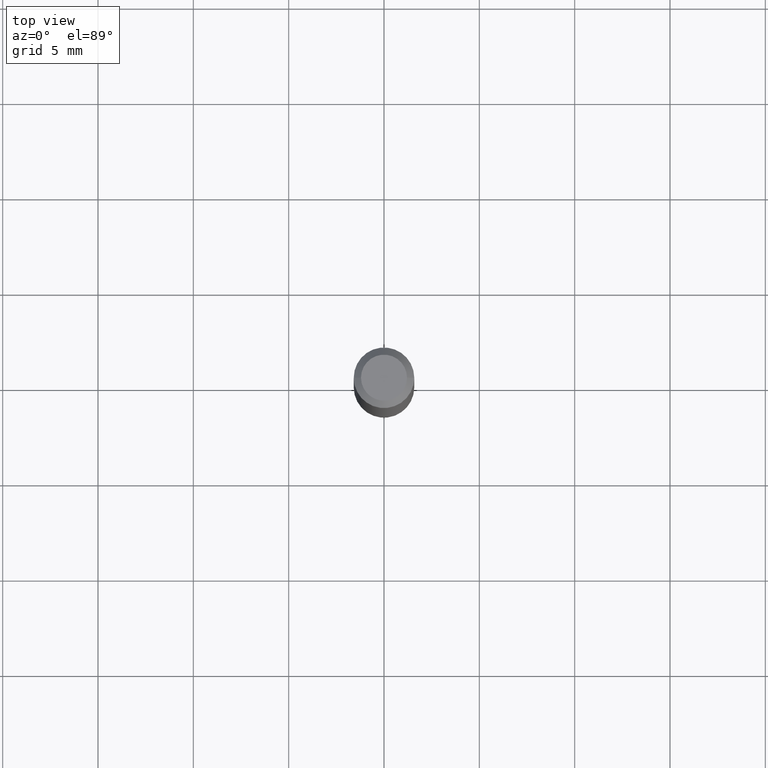
[diagram: clean part render]
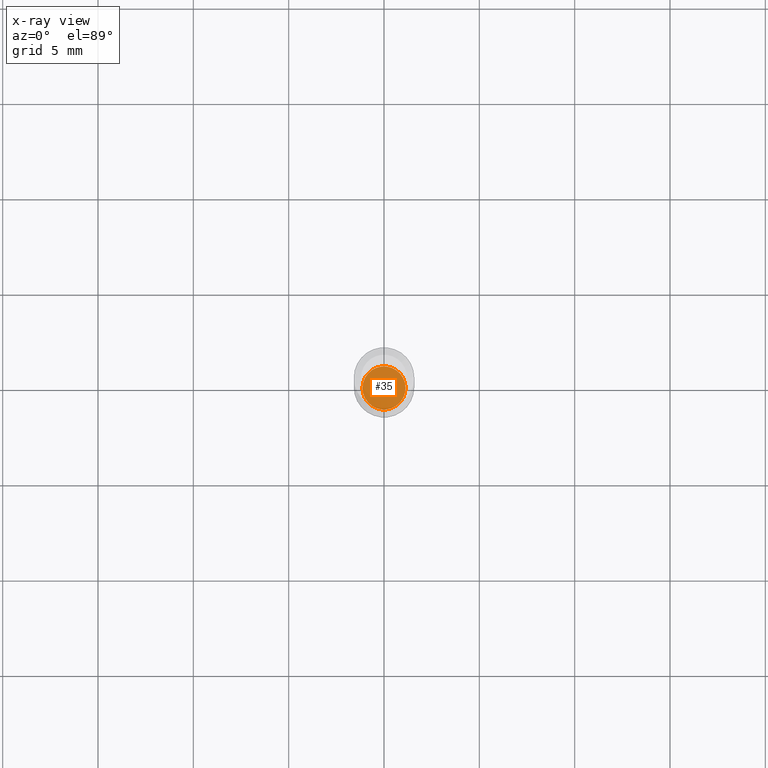
[diagram: x-ray — body ghosted, one internal face saturated and labeled with its STEP entity id]
A machine part, top view, then the same camera in x-ray: the body is ghosted and one INTERNAL B-rep face — a face not visible from any outside direction — is saturated and labeled: STEP entity #35.
In plain terms, the highlighted planar face has unit normal (-0, 0, 1).
Its self-contained STEP definition (entity closure, byte-faithful):
#35 = ADVANCED_FACE ( 'NONE', ( #157 ), #251, .F. ) ;
#42 = DIRECTION ( 'NONE',  ( -2.445468806185136597E-29, 3.491481338843145583E-15, 1.000000000000000000 ) ) ;
#49 = AXIS2_PLACEMENT_3D ( 'NONE', #260, #483, #208 ) ;
#64 = EDGE_CURVE ( 'NONE', #180, #372, #393, .T. ) ;
#70 = DIRECTION ( 'NONE',  ( 1.000000000000000000, -6.982962677686265922E-15, 4.876176775795935793E-29 ) ) ;
#98 = AXIS2_PLACEMENT_3D ( 'NONE', #191, #312, #70 ) ;
#107 = AXIS2_PLACEMENT_3D ( 'NONE', #339, #42, #374 ) ;
#146 = CIRCLE ( 'NONE', #107, 0.04449999999999997014 ) ;
#157 = FACE_OUTER_BOUND ( 'NONE', #472, .T. ) ;
#180 = VERTEX_POINT ( 'NONE', #476 ) ;
#191 = CARTESIAN_POINT ( 'NONE',  ( 3.007926631607718216E-29, -4.294522046777069173E-15, -1.230000000000000204 ) ) ;
#208 = DIRECTION ( 'NONE',  ( 1.000000000000000000, -6.982962677686261977E-15, 0.000000000000000000 ) ) ;
#251 = PLANE ( 'NONE',  #98 ) ;
#260 = CARTESIAN_POINT ( 'NONE',  ( 3.007926631607718216E-29, -4.294522046777069173E-15, -1.230000000000000204 ) ) ;
#312 = DIRECTION ( 'NONE',  ( -2.438088387897960049E-29, 3.491481338843145188E-15, 1.000000000000000000 ) ) ;
#322 = EDGE_CURVE ( 'NONE', #372, #180, #146, .T. ) ;
#339 = CARTESIAN_POINT ( 'NONE',  ( 3.007926631607718216E-29, -4.294522046777069173E-15, -1.230000000000000204 ) ) ;
#365 = ORIENTED_EDGE ( 'NONE', *, *, #322, .F. ) ;
#372 = VERTEX_POINT ( 'NONE', #404 ) ;
#374 = DIRECTION ( 'NONE',  ( 1.000000000000000000, -6.982962677686261977E-15, 0.000000000000000000 ) ) ;
#393 = CIRCLE ( 'NONE', #49, 0.04449999999999997014 ) ;
#404 = CARTESIAN_POINT ( 'NONE',  ( 0.04449999999999997014, -4.605263885934107852E-15, -1.230000000000000204 ) ) ;
#472 = EDGE_LOOP ( 'NONE', ( #365, #506 ) ) ;
#476 = CARTESIAN_POINT ( 'NONE',  ( -0.04449999999999997014, -3.975681302189714292E-15, -1.230000000000000204 ) ) ;
#483 = DIRECTION ( 'NONE',  ( -2.445468806185136597E-29, 3.491481338843145583E-15, 1.000000000000000000 ) ) ;
#506 = ORIENTED_EDGE ( 'NONE', *, *, #64, .F. ) ;